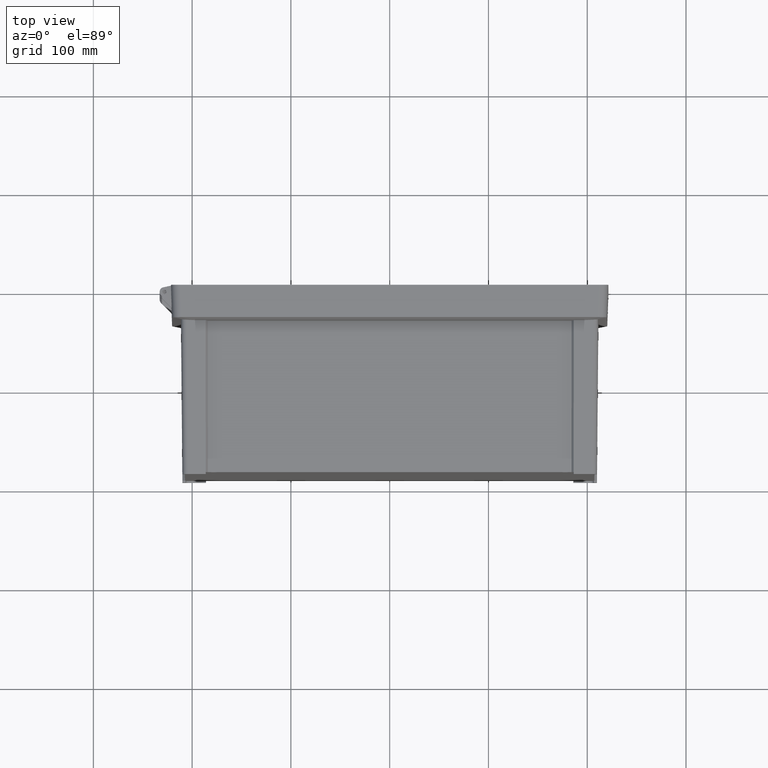
[diagram: clean part render]
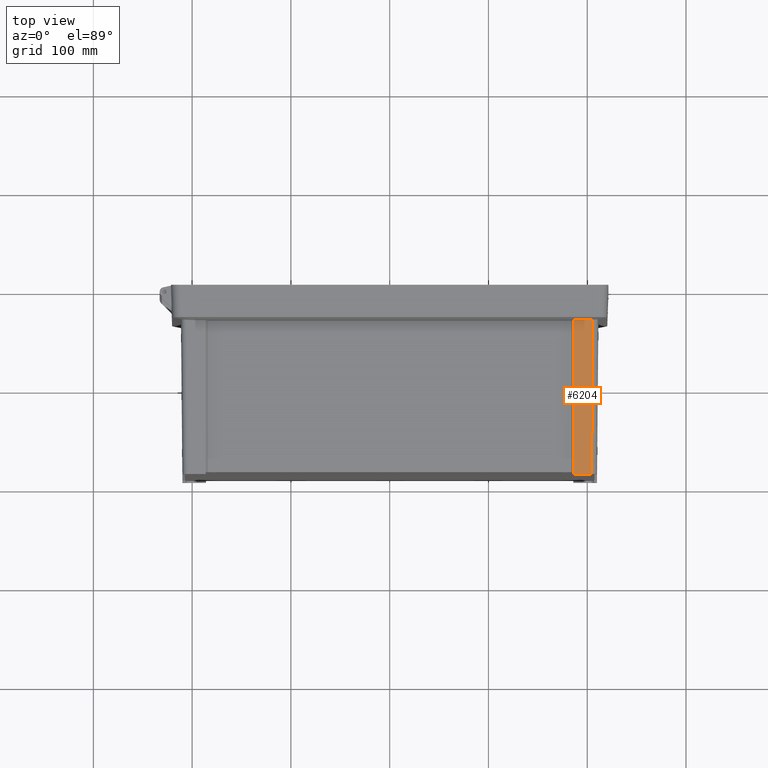
[diagram: same view with one face highlighted and labeled with its STEP entity id]
A machine part, top view. The second image highlights one B-rep face of the part: STEP entity #6204.
In plain terms, the highlighted planar face has unit normal (0, -0.0087, 1).
Its self-contained STEP definition (entity closure, byte-faithful):
#78 = CARTESIAN_POINT ( 'NONE',  ( 186.2179237881000200, -189.4000000000000100, 260.2471312403999900 ) ) ;
#234 = FACE_OUTER_BOUND ( 'NONE', #18904, .T. ) ;
#2275 = CARTESIAN_POINT ( 'NONE',  ( 204.3298869280000100, -191.4000000000000100, 260.2296775048000100 ) ) ;
#2971 = VECTOR ( 'NONE', #26318, 1000.000000000000000 ) ;
#3452 = CARTESIAN_POINT ( 'NONE',  ( 186.2646240538318500, -138.1286384003067000, 260.6945696345337100 ) ) ;
#3729 = EDGE_CURVE ( 'NONE', #16011, #15133, #9455, .T. ) ;
#4397 = ORIENTED_EDGE ( 'NONE', *, *, #3729, .T. ) ;
#4827 = EDGE_CURVE ( 'NONE', #27624, #7853, #28390, .T. ) ;
#5036 = ORIENTED_EDGE ( 'NONE', *, *, #17402, .T. ) ;
#5043 = DIRECTION ( 'NONE',  ( -1.000000000000000000, -7.544912898142000100E-013, -1.561016461684000100E-014 ) ) ;
#5266 = CARTESIAN_POINT ( 'NONE',  ( 197.2823332502000000, -35.58591520091000100, 261.5894464227999900 ) ) ;
#6018 = CARTESIAN_POINT ( 'NONE',  ( 205.6931506647999900, -35.18544863259000300, 261.5929412415999900 ) ) ;
#6113 = EDGE_CURVE ( 'NONE', #15133, #7853, #10440, .T. ) ;
#6204 = ADVANCED_FACE ( 'NONE', ( #234 ), #26327, .T. ) ;
#7853 = VERTEX_POINT ( 'NONE', #15461 ) ;
#8077 = CARTESIAN_POINT ( 'NONE',  ( 197.2823332502000000, -35.58591520091000100, 261.5894464227999900 ) ) ;
#8333 = VERTEX_POINT ( 'NONE', #28495 ) ;
#8349 = EDGE_CURVE ( 'NONE', #27624, #8333, #13695, .T. ) ;
#9013 = CARTESIAN_POINT ( 'NONE',  ( 202.6271841965939600, -35.47572384783603600, 261.5904080481514000 ) ) ;
#9385 = ORIENTED_EDGE ( 'NONE', *, *, #26586, .F. ) ;
#9455 = B_SPLINE_CURVE_WITH_KNOTS ( 'NONE', 3,
 ( #26806, #10338, #3452, #78 ),
 .UNSPECIFIED., .F., .F.,
 ( 4, 4 ),
 ( 0.0000000000000000000, 1.000000000000000000 ),
 .UNSPECIFIED. ) ;
#9942 = ORIENTED_EDGE ( 'NONE', *, *, #6113, .T. ) ;
#10147 = VECTOR ( 'NONE', #17536, 1000.000000000000100 ) ;
#10338 = CARTESIAN_POINT ( 'NONE',  ( 186.3113243196159200, -86.85727680061333400, 261.1420080286664000 ) ) ;
#10368 = CARTESIAN_POINT ( 'NONE',  ( 186.2179237881000200, -189.4000000000000100, 260.2471312403999900 ) ) ;
#10440 = B_SPLINE_CURVE_WITH_KNOTS ( 'NONE', 3,
 ( #27895, #27868, #27808, #27803 ),
 .UNSPECIFIED., .F., .F.,
 ( 4, 4 ),
 ( 0.0000000000000000000, 1.000000000000000000 ),
 .UNSPECIFIED. ) ;
#11057 = LINE ( 'NONE', #8077, #18339 ) ;
#12006 = CARTESIAN_POINT ( 'NONE',  ( 199.8184230403385900, -35.58591520092369400, 261.5894464228029500 ) ) ;
#13695 = LINE ( 'NONE', #21022, #10147 ) ;
#14550 = CARTESIAN_POINT ( 'NONE',  ( 186.3580245853999900, -35.58591520091999900, 261.5894464227999900 ) ) ;
#15017 = CARTESIAN_POINT ( 'NONE',  ( 197.2823332502000000, -35.58591520091000100, 261.5894464227999900 ) ) ;
#15133 = VERTEX_POINT ( 'NONE', #10368 ) ;
#15461 = CARTESIAN_POINT ( 'NONE',  ( 186.2300377530999900, -191.4000000000000100, 260.2296775048000100 ) ) ;
#16011 = VERTEX_POINT ( 'NONE', #14550 ) ;
#17402 = EDGE_CURVE ( 'NONE', #23333, #16011, #11057, .T. ) ;
#17536 = DIRECTION ( 'NONE',  ( 0.008726203243951739100, 0.9999238504775703800, 0.008726203243942741100 ) ) ;
#17993 = CARTESIAN_POINT ( 'NONE',  ( 204.3298869280000100, -191.4000000000000100, 260.2296775048000100 ) ) ;
#18339 = VECTOR ( 'NONE', #5043, 1000.000000000000000 ) ;
#18904 = EDGE_LOOP ( 'NONE', ( #9385, #5036, #4397, #9942, #29022, #28927 ) ) ;
#21022 = CARTESIAN_POINT ( 'NONE',  ( 204.3298869280000100, -191.4000000000000100, 260.2296775048000100 ) ) ;
#23224 = B_SPLINE_CURVE_WITH_KNOTS ( 'NONE', 3,
 ( #15017, #12006, #9013, #6018 ),
 .UNSPECIFIED., .F., .F.,
 ( 4, 4 ),
 ( 0.0000000000000000000, 1.000000000000000000 ),
 .UNSPECIFIED. ) ;
#23333 = VERTEX_POINT ( 'NONE', #5266 ) ;
#23408 = AXIS2_PLACEMENT_3D ( 'NONE', #26260, #26255, #26087 ) ;
#26087 = DIRECTION ( 'NONE',  ( 0.0000000000000000000, -0.9999619230641713100, -0.008726535498373750800 ) ) ;
#26255 = DIRECTION ( 'NONE',  ( 0.0000000000000000000, -0.008726535498373750800, 0.9999619230641713100 ) ) ;
#26260 = CARTESIAN_POINT ( 'NONE',  ( 217.4000000000000100, -14.00000000000000000, 261.7778238509000600 ) ) ;
#26318 = DIRECTION ( 'NONE',  ( -1.000000000000000000, 0.0000000000000000000, -1.256218619537000000E-014 ) ) ;
#26327 = PLANE ( 'NONE',  #23408 ) ;
#26586 = EDGE_CURVE ( 'NONE', #23333, #8333, #23224, .T. ) ;
#26806 = CARTESIAN_POINT ( 'NONE',  ( 186.3580245853999900, -35.58591520091999900, 261.5894464227999900 ) ) ;
#27624 = VERTEX_POINT ( 'NONE', #17993 ) ;
#27803 = CARTESIAN_POINT ( 'NONE',  ( 186.2300377530999900, -191.4000000000000100, 260.2296775048000100 ) ) ;
#27808 = CARTESIAN_POINT ( 'NONE',  ( 186.2259997647666700, -190.7333333333334900, 260.2354954166799500 ) ) ;
#27868 = CARTESIAN_POINT ( 'NONE',  ( 186.2219617764333200, -190.0666666666667800, 260.2413133285405100 ) ) ;
#27895 = CARTESIAN_POINT ( 'NONE',  ( 186.2179237881000200, -189.4000000000000100, 260.2471312403999900 ) ) ;
#28390 = LINE ( 'NONE', #2275, #2971 ) ;
#28495 = CARTESIAN_POINT ( 'NONE',  ( 205.6931506647999900, -35.18544863259000300, 261.5929412415999900 ) ) ;
#28927 = ORIENTED_EDGE ( 'NONE', *, *, #8349, .T. ) ;
#29022 = ORIENTED_EDGE ( 'NONE', *, *, #4827, .F. ) ;